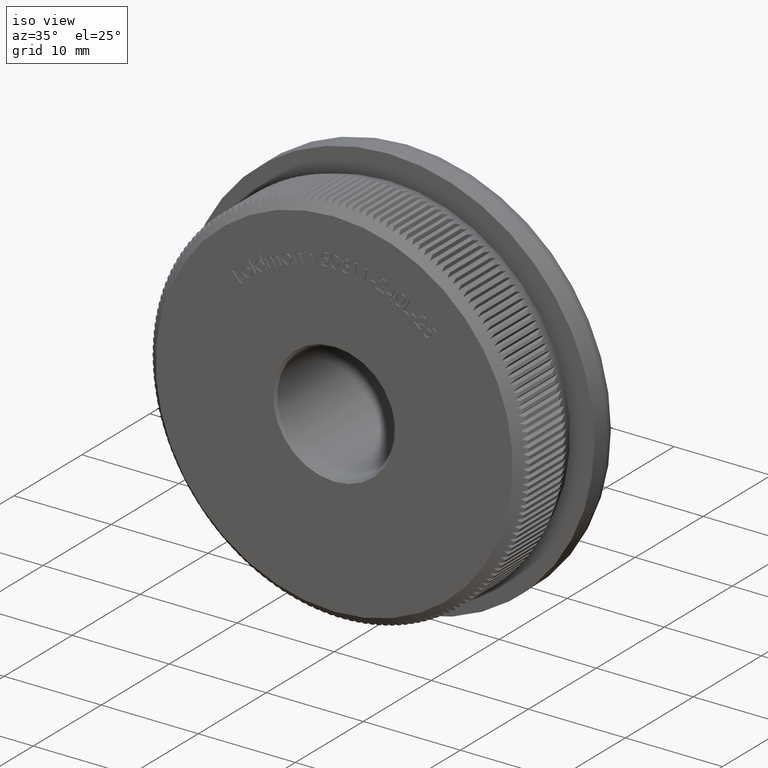
[diagram: clean part render]
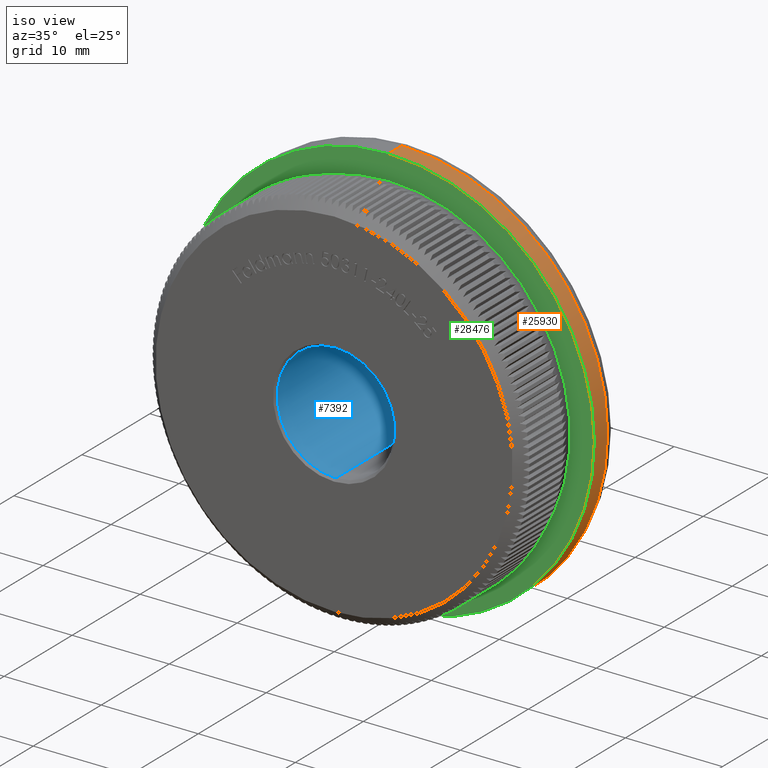
[diagram: same view with three faces highlighted in distinct colors, each labeled with its STEP entity id]
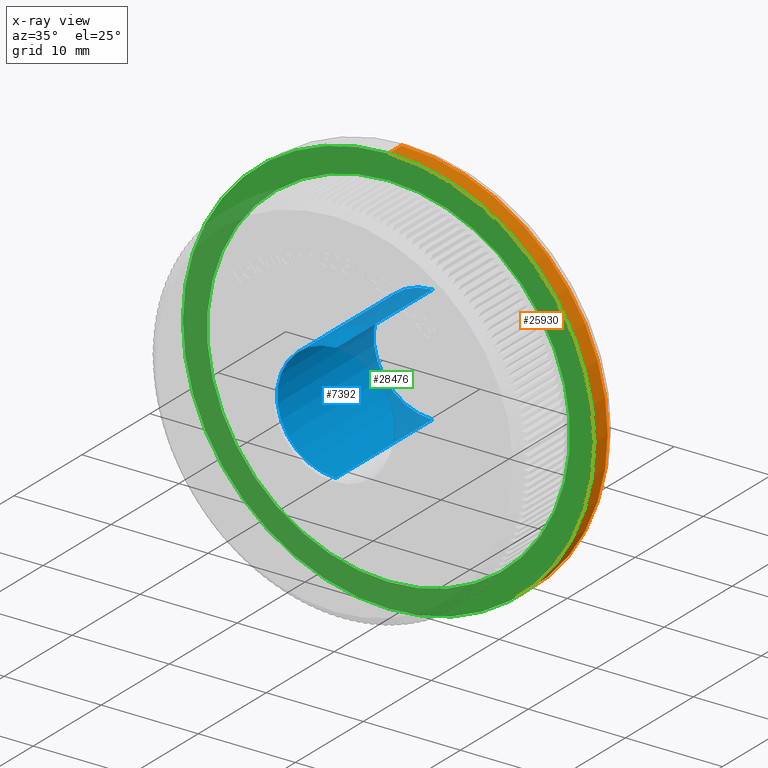
[diagram: x-ray of the same camera — body ghosted, the three highlighted faces saturated]
A machine part, iso view with three faces highlighted in distinct colors.
The next image is the same camera in x-ray (body ghosted, the three faces saturated) — at least one of them is partly hidden behind the body in this view.
Their STEP definitions:

[orange] entity #25930 — the highlighted cylindrical surface (partial cylindrical patch) has radius 21.2 mm, axis along (-0, -1, -0).
#2406 = VERTEX_POINT ( 'NONE', #12454 ) ;
#3378 = VERTEX_POINT ( 'NONE', #6986 ) ;
#6986 = CARTESIAN_POINT ( 'NONE',  ( 2.596251214192389200E-015, 9.966330070852492900, 21.20000000000000300 ) ) ;
#7031 = DIRECTION ( 'NONE',  ( -0.0000000000000000000, -1.000000000000000000, -0.0000000000000000000 ) ) ;
#7536 = ORIENTED_EDGE ( 'NONE', *, *, #21227, .F. ) ;
#8632 = LINE ( 'NONE', #25353, #23464 ) ;
#9453 = ORIENTED_EDGE ( 'NONE', *, *, #17327, .T. ) ;
#10148 = DIRECTION ( 'NONE',  ( -0.0000000000000000000, -1.000000000000000000, -0.0000000000000000000 ) ) ;
#10291 = CARTESIAN_POINT ( 'NONE',  ( 2.596251214192388800E-015, 8.000000000000000000, 21.19999999999999900 ) ) ;
#10360 = CIRCLE ( 'NONE', #18273, 21.20000000000000300 ) ;
#10612 = EDGE_CURVE ( 'NONE', #14141, #29151, #31165, .T. ) ;
#11736 = AXIS2_PLACEMENT_3D ( 'NONE', #24386, #7031, #26878 ) ;
#12454 = CARTESIAN_POINT ( 'NONE',  ( 0.0000000000000000000, 9.966330070852492900, -21.20000000000000300 ) ) ;
#13057 = CARTESIAN_POINT ( 'NONE',  ( 0.0000000000000000000, 9.966330070852492900, 0.0000000000000000000 ) ) ;
#13510 = DIRECTION ( 'NONE',  ( 0.0000000000000000000, 0.0000000000000000000, -1.000000000000000000 ) ) ;
#13571 = CARTESIAN_POINT ( 'NONE',  ( 0.0000000000000000000, 8.000000000000000000, -21.19999999999999900 ) ) ;
#14141 = VERTEX_POINT ( 'NONE', #13571 ) ;
#15146 = DIRECTION ( 'NONE',  ( -0.0000000000000000000, -1.000000000000000000, -0.0000000000000000000 ) ) ;
#15700 = DIRECTION ( 'NONE',  ( -0.0000000000000000000, -1.000000000000000000, -0.0000000000000000000 ) ) ;
#16896 = AXIS2_PLACEMENT_3D ( 'NONE', #18407, #15700, #13510 ) ;
#17327 = EDGE_CURVE ( 'NONE', #2406, #3378, #10360, .T. ) ;
#18273 = AXIS2_PLACEMENT_3D ( 'NONE', #13057, #15146, #25110 ) ;
#18407 = CARTESIAN_POINT ( 'NONE',  ( 0.0000000000000000000, 8.000000000000000000, 0.0000000000000000000 ) ) ;
#18865 = FACE_OUTER_BOUND ( 'NONE', #24342, .T. ) ;
#21018 = ORIENTED_EDGE ( 'NONE', *, *, #10612, .F. ) ;
#21227 = EDGE_CURVE ( 'NONE', #2406, #14141, #27193, .T. ) ;
#21453 = DIRECTION ( 'NONE',  ( -0.0000000000000000000, -1.000000000000000000, -0.0000000000000000000 ) ) ;
#23464 = VECTOR ( 'NONE', #10148, 1000.000000000000000 ) ;
#23688 = ORIENTED_EDGE ( 'NONE', *, *, #27459, .T. ) ;
#24342 = EDGE_LOOP ( 'NONE', ( #9453, #23688, #21018, #7536 ) ) ;
#24386 = CARTESIAN_POINT ( 'NONE',  ( 0.0000000000000000000, 0.0000000000000000000, 0.0000000000000000000 ) ) ;
#25110 = DIRECTION ( 'NONE',  ( 0.0000000000000000000, 0.0000000000000000000, -1.000000000000000000 ) ) ;
#25353 = CARTESIAN_POINT ( 'NONE',  ( 2.596251214192389200E-015, 0.0000000000000000000, 21.20000000000000300 ) ) ;
#25930 = ADVANCED_FACE ( 'NONE', ( #18865 ), #26242, .T. ) ;
#26242 = CYLINDRICAL_SURFACE ( 'NONE', #11736, 21.20000000000000300 ) ;
#26406 = VECTOR ( 'NONE', #21453, 1000.000000000000000 ) ;
#26430 = CARTESIAN_POINT ( 'NONE',  ( 0.0000000000000000000, 0.0000000000000000000, -21.20000000000000300 ) ) ;
#26878 = DIRECTION ( 'NONE',  ( 0.0000000000000000000, 0.0000000000000000000, -1.000000000000000000 ) ) ;
#27193 = LINE ( 'NONE', #26430, #26406 ) ;
#27459 = EDGE_CURVE ( 'NONE', #3378, #29151, #8632, .T. ) ;
#29151 = VERTEX_POINT ( 'NONE', #10291 ) ;
#31165 = CIRCLE ( 'NONE', #16896, 21.19999999999999900 ) ;

[blue] entity #7392 — the highlighted cylindrical surface (partial cylindrical patch) has radius 6.05 mm, axis along (-0, -1, -0).
#35 = AXIS2_PLACEMENT_3D ( 'NONE', #23053, #10440, #15342 ) ;
#1119 = VECTOR ( 'NONE', #6928, 1000.000000000000000 ) ;
#1532 = CIRCLE ( 'NONE', #35, 6.049999999999999800 ) ;
#2160 = VECTOR ( 'NONE', #16612, 1000.000000000000000 ) ;
#3713 = LINE ( 'NONE', #21495, #2160 ) ;
#4143 = DIRECTION ( 'NONE',  ( 0.0000000000000000000, 0.0000000000000000000, -1.000000000000000000 ) ) ;
#5610 = DIRECTION ( 'NONE',  ( 0.0000000000000000000, 0.0000000000000000000, 1.000000000000000000 ) ) ;
#6687 = VERTEX_POINT ( 'NONE', #8775 ) ;
#6742 = DIRECTION ( 'NONE',  ( -0.0000000000000000000, -1.000000000000000000, -0.0000000000000000000 ) ) ;
#6759 = VERTEX_POINT ( 'NONE', #23293 ) ;
#6928 = DIRECTION ( 'NONE',  ( -0.0000000000000000000, -1.000000000000000000, -0.0000000000000000000 ) ) ;
#7127 = CYLINDRICAL_SURFACE ( 'NONE', #19578, 6.049999999999999800 ) ;
#7136 = CARTESIAN_POINT ( 'NONE',  ( 0.0000000000000000000, 14.45701308142265200, -6.049999999999999800 ) ) ;
#7392 = ADVANCED_FACE ( 'NONE', ( #7925 ), #7127, .F. ) ;
#7687 = EDGE_LOOP ( 'NONE', ( #18585, #11266, #32227, #30149 ) ) ;
#7925 = FACE_OUTER_BOUND ( 'NONE', #7687, .T. ) ;
#8775 = CARTESIAN_POINT ( 'NONE',  ( 7.409113134841486500E-016, 14.45701308142265200, 6.049999999999999800 ) ) ;
#10440 = DIRECTION ( 'NONE',  ( 0.0000000000000000000, -1.000000000000000000, 0.0000000000000000000 ) ) ;
#11266 = ORIENTED_EDGE ( 'NONE', *, *, #12724, .T. ) ;
#12724 = EDGE_CURVE ( 'NONE', #6687, #6759, #15243, .T. ) ;
#13488 = CARTESIAN_POINT ( 'NONE',  ( 0.0000000000000000000, 0.2499999999999932800, -6.049999999999999800 ) ) ;
#15243 = LINE ( 'NONE', #24183, #1119 ) ;
#15342 = DIRECTION ( 'NONE',  ( 0.0000000000000000000, 0.0000000000000000000, -1.000000000000000000 ) ) ;
#16296 = CIRCLE ( 'NONE', #21427, 6.049999999999999800 ) ;
#16612 = DIRECTION ( 'NONE',  ( -0.0000000000000000000, -1.000000000000000000, -0.0000000000000000000 ) ) ;
#16844 = EDGE_CURVE ( 'NONE', #32263, #18182, #3713, .T. ) ;
#18182 = VERTEX_POINT ( 'NONE', #13488 ) ;
#18585 = ORIENTED_EDGE ( 'NONE', *, *, #31494, .T. ) ;
#19578 = AXIS2_PLACEMENT_3D ( 'NONE', #29182, #6742, #4143 ) ;
#21427 = AXIS2_PLACEMENT_3D ( 'NONE', #22873, #27733, #5610 ) ;
#21495 = CARTESIAN_POINT ( 'NONE',  ( 0.0000000000000000000, 15.00000000000000000, -6.049999999999999800 ) ) ;
#22873 = CARTESIAN_POINT ( 'NONE',  ( 0.0000000000000000000, 14.45701308142265200, 0.0000000000000000000 ) ) ;
#23053 = CARTESIAN_POINT ( 'NONE',  ( 0.0000000000000000000, 0.2499999999999932800, 0.0000000000000000000 ) ) ;
#23293 = CARTESIAN_POINT ( 'NONE',  ( 7.409113134841486500E-016, 0.2499999999999932800, 6.049999999999999800 ) ) ;
#24183 = CARTESIAN_POINT ( 'NONE',  ( 7.409113134841486500E-016, 15.00000000000000000, 6.049999999999999800 ) ) ;
#27733 = DIRECTION ( 'NONE',  ( 0.0000000000000000000, 1.000000000000000000, 0.0000000000000000000 ) ) ;
#28770 = EDGE_CURVE ( 'NONE', #6759, #18182, #1532, .T. ) ;
#29182 = CARTESIAN_POINT ( 'NONE',  ( 0.0000000000000000000, 15.00000000000000000, 0.0000000000000000000 ) ) ;
#30149 = ORIENTED_EDGE ( 'NONE', *, *, #16844, .F. ) ;
#31494 = EDGE_CURVE ( 'NONE', #32263, #6687, #16296, .T. ) ;
#32227 = ORIENTED_EDGE ( 'NONE', *, *, #28770, .T. ) ;
#32263 = VERTEX_POINT ( 'NONE', #7136 ) ;

[green] entity #28476 — the highlighted planar face has unit normal (0, -1, -0).
#88 = DIRECTION ( 'NONE',  ( -0.0000000000000000000, -1.000000000000000000, -0.0000000000000000000 ) ) ;
#796 = DIRECTION ( 'NONE',  ( 0.0000000000000000000, -1.000000000000000000, -0.0000000000000000000 ) ) ;
#1623 = AXIS2_PLACEMENT_3D ( 'NONE', #27148, #88, #24978 ) ;
#2170 = DIRECTION ( 'NONE',  ( 0.0000000000000000000, 0.0000000000000000000, -1.000000000000000000 ) ) ;
#2651 = ORIENTED_EDGE ( 'NONE', *, *, #31150, .T. ) ;
#4561 = DIRECTION ( 'NONE',  ( -0.0000000000000000000, -1.000000000000000000, -0.0000000000000000000 ) ) ;
#6170 = DIRECTION ( 'NONE',  ( -0.0000000000000000000, -1.000000000000000000, -0.0000000000000000000 ) ) ;
#6680 = CARTESIAN_POINT ( 'NONE',  ( 18.69999999999999900, 8.000000000000000000, 0.0000000000000000000 ) ) ;
#6750 = CARTESIAN_POINT ( 'NONE',  ( 0.0000000000000000000, 8.000000000000000000, -18.69999999999999900 ) ) ;
#6964 = AXIS2_PLACEMENT_3D ( 'NONE', #20706, #6170, #30789 ) ;
#7624 = ORIENTED_EDGE ( 'NONE', *, *, #10612, .T. ) ;
#8453 = VERTEX_POINT ( 'NONE', #6750 ) ;
#9837 = CARTESIAN_POINT ( 'NONE',  ( 0.0000000000000000000, 8.000000000000000000, 0.0000000000000000000 ) ) ;
#9853 = EDGE_CURVE ( 'NONE', #8453, #27676, #10199, .T. ) ;
#10199 = CIRCLE ( 'NONE', #11878, 18.69999999999999900 ) ;
#10291 = CARTESIAN_POINT ( 'NONE',  ( 2.596251214192388800E-015, 8.000000000000000000, 21.19999999999999900 ) ) ;
#10612 = EDGE_CURVE ( 'NONE', #14141, #29151, #31165, .T. ) ;
#11878 = AXIS2_PLACEMENT_3D ( 'NONE', #9837, #4561, #2170 ) ;
#13510 = DIRECTION ( 'NONE',  ( 0.0000000000000000000, 0.0000000000000000000, -1.000000000000000000 ) ) ;
#13571 = CARTESIAN_POINT ( 'NONE',  ( 0.0000000000000000000, 8.000000000000000000, -21.19999999999999900 ) ) ;
#13678 = FACE_OUTER_BOUND ( 'NONE', #31311, .T. ) ;
#14141 = VERTEX_POINT ( 'NONE', #13571 ) ;
#14269 = DIRECTION ( 'NONE',  ( 0.0000000000000000000, 0.0000000000000000000, -1.000000000000000000 ) ) ;
#14639 = CIRCLE ( 'NONE', #1623, 18.69999999999999900 ) ;
#14735 = CIRCLE ( 'NONE', #6964, 21.19999999999999900 ) ;
#15633 = FACE_BOUND ( 'NONE', #21247, .T. ) ;
#15700 = DIRECTION ( 'NONE',  ( -0.0000000000000000000, -1.000000000000000000, -0.0000000000000000000 ) ) ;
#16581 = AXIS2_PLACEMENT_3D ( 'NONE', #6680, #796, #14269 ) ;
#16896 = AXIS2_PLACEMENT_3D ( 'NONE', #18407, #15700, #13510 ) ;
#18407 = CARTESIAN_POINT ( 'NONE',  ( 0.0000000000000000000, 8.000000000000000000, 0.0000000000000000000 ) ) ;
#19261 = CARTESIAN_POINT ( 'NONE',  ( 2.332952152375707600E-015, 8.000000000000000000, 18.69999999999999900 ) ) ;
#20706 = CARTESIAN_POINT ( 'NONE',  ( 0.0000000000000000000, 8.000000000000000000, 0.0000000000000000000 ) ) ;
#21247 = EDGE_LOOP ( 'NONE', ( #24685, #27765 ) ) ;
#24374 = EDGE_CURVE ( 'NONE', #27676, #8453, #14639, .T. ) ;
#24685 = ORIENTED_EDGE ( 'NONE', *, *, #9853, .F. ) ;
#24978 = DIRECTION ( 'NONE',  ( 0.0000000000000000000, 0.0000000000000000000, -1.000000000000000000 ) ) ;
#26423 = PLANE ( 'NONE',  #16581 ) ;
#27148 = CARTESIAN_POINT ( 'NONE',  ( 0.0000000000000000000, 8.000000000000000000, 0.0000000000000000000 ) ) ;
#27676 = VERTEX_POINT ( 'NONE', #19261 ) ;
#27765 = ORIENTED_EDGE ( 'NONE', *, *, #24374, .F. ) ;
#28476 = ADVANCED_FACE ( 'NONE', ( #13678, #15633 ), #26423, .T. ) ;
#29151 = VERTEX_POINT ( 'NONE', #10291 ) ;
#30789 = DIRECTION ( 'NONE',  ( 0.0000000000000000000, 0.0000000000000000000, -1.000000000000000000 ) ) ;
#31150 = EDGE_CURVE ( 'NONE', #29151, #14141, #14735, .T. ) ;
#31165 = CIRCLE ( 'NONE', #16896, 21.19999999999999900 ) ;
#31311 = EDGE_LOOP ( 'NONE', ( #7624, #2651 ) ) ;